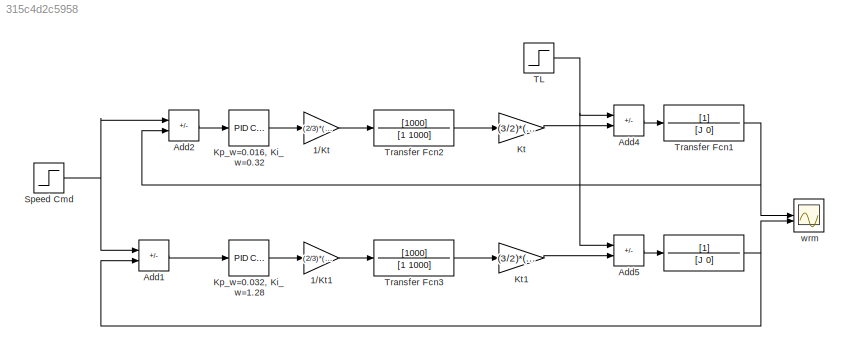
MODEL slx_315c4d2c5958
KIND model
CONFIG AbsTol = auto
CONFIG EnableMultiTasking = off
CONFIG FixedStep = 0.00001
CONFIG MaxStep = auto
CONFIG MinStep = auto
CONFIG RelTol = 1e-3
CONFIG SampleTimeConstraint = Unconstrained
CONFIG SolverName = FixedStepAuto
CONFIG StartTime = 0.0
CONFIG StopTime = 1.2
BLOCK [TransferFcn]  
  Denominator = [J 0]
BLOCK [Gain] 1//Kt
  Gain = (2/3)*(2/4)*(1/0.03)
BLOCK [Gain] 1//Kt1
  Gain = (2/3)*(2/4)*(1/0.03)
BLOCK [Sum] Add1
  IconShape = rectangular
  Inputs = +-
BLOCK [Sum] Add2
  IconShape = rectangular
  Inputs = +-
BLOCK [Sum] Add4
  IconShape = rectangular
  Inputs = -+
BLOCK [Sum] Add5
  IconShape = rectangular
  Inputs = -+
BLOCK [Reference] Kp_w=0.016, Ki_w=0.32  REF=slpidlib/PID Controller
  LibrarySourceBlock = simulink/Continuous/PID Controller
  SourceBlock = slpidlib/PID Controller
  SourceType = PID 1dof
BLOCK [Reference] Kp_w=0.032, Ki_w=1.28  REF=slpidlib/PID Controller
  LibrarySourceBlock = simulink/Continuous/PID Controller
  SourceBlock = slpidlib/PID Controller
  SourceType = PID 1dof
BLOCK [Gain] Kt
  Gain = (3/2)*(4/2)*0.03
BLOCK [Gain] Kt1
  Gain = (3/2)*(4/2)*0.03
BLOCK [Step] Speed Cmd
  After = 100
  SampleTime = 0
  Time = 0
BLOCK [Step] TL
  After = 0.5
  SampleTime = 0
  Time = 0.5
BLOCK [TransferFcn] Transfer Fcn1
  Denominator = [J 0]
BLOCK [TransferFcn] Transfer Fcn2
  Denominator = [1 1000]
  Numerator = [1000]
BLOCK [TransferFcn] Transfer Fcn3
  Denominator = [1 1000]
  Numerator = [1000]
BLOCK [Scope] wrm
  Floating = off
  NumInputPorts = 2
  ScopeSpecificationString = Simulink.scopes.TimeScopeBlockCfg('CurrentConfiguration', extmgr.ConfigurationSet(extmgr.Configuration('Core','General UI',true,'FigureColor',[1 1 1]),extmgr.Configuration('Core','Source UI',true),extmgr.Configuration('Sources','WiredSimulink',true,'DataLoggingVariableName','ScopeData2'),extmgr.Configuration('Visuals','Time Domain',true,'SerializedDisplays',{struct('MinYLimReal','-14.20101','MaxYL...<+1713ch>
NET  :1 -> Add1:2, wrm:2
LINE 1//Kt1:1 -> Transfer Fcn3:1
LINE 1//Kt:1 -> Transfer Fcn2:1
LINE Add1:1 -> Kp_w=0.032, Ki_w=1.28:1
LINE Add2:1 -> Kp_w=0.016, Ki_w=0.32:1
LINE Add4:1 -> Transfer Fcn1:1
LINE Add5:1 ->  :1
LINE Kp_w=0.016, Ki_w=0.32:1 -> 1//Kt:1
LINE Kp_w=0.032, Ki_w=1.28:1 -> 1//Kt1:1
LINE Kt1:1 -> Add5:2
LINE Kt:1 -> Add4:2
NET Speed Cmd:1 -> Add1:1, Add2:1
NET TL:1 -> Add4:1, Add5:1
NET Transfer Fcn1:1 -> Add2:2, wrm:1
LINE Transfer Fcn2:1 -> Kt:1
LINE Transfer Fcn3:1 -> Kt1:1
note: NET lines group one-source signal fan-out (src -> all destinations, sorted); 1:1 wires keep LINE
